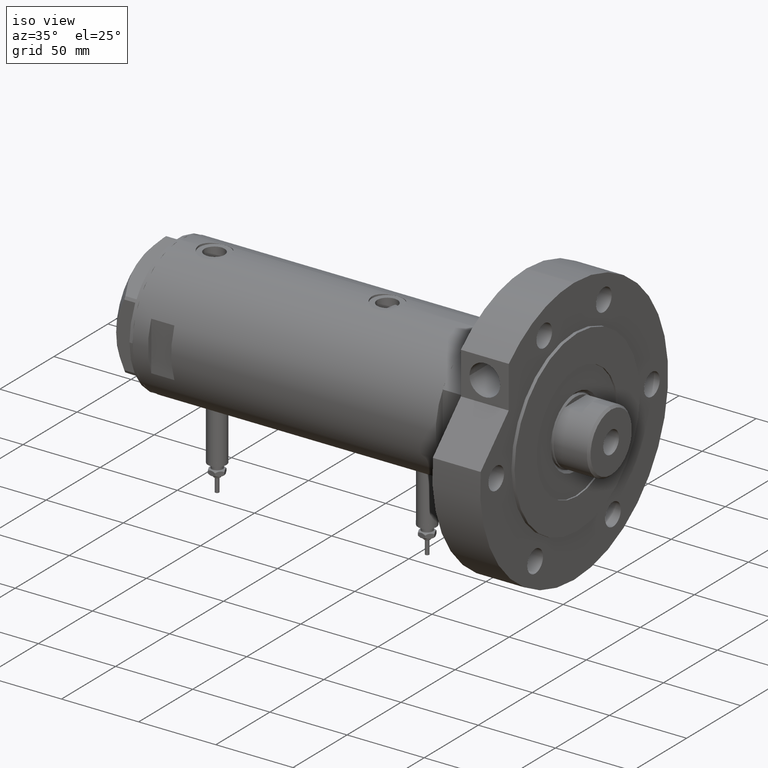
[diagram: clean part render]
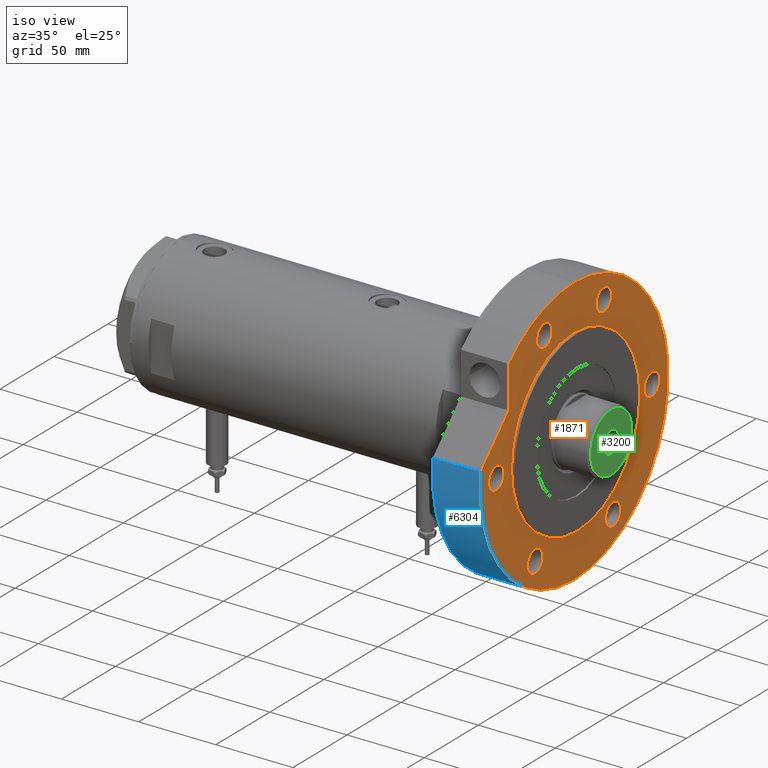
[diagram: same view with three faces highlighted in distinct colors, each labeled with its STEP entity id]
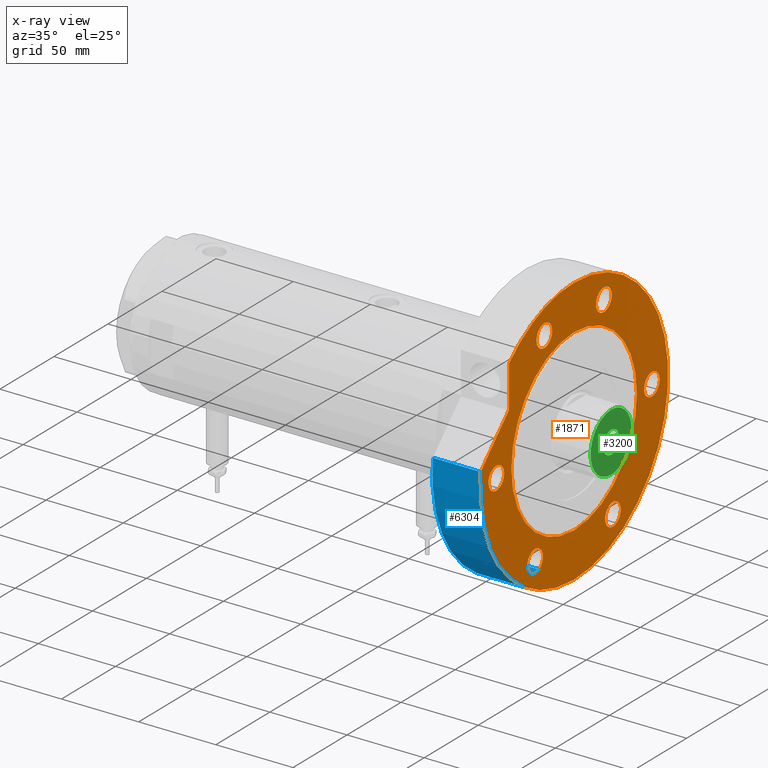
[diagram: x-ray of the same camera — body ghosted, the three highlighted faces saturated]
A machine part, iso view with three faces highlighted in distinct colors.
The next image is the same camera in x-ray (body ghosted, the three faces saturated) — at least one of them is partly hidden behind the body in this view.
Their STEP definitions:

[orange] entity #1871 — the highlighted planar face has unit normal (1, 0, -0).
#67 = LINE ( 'NONE', #7471, #4127 ) ;
#146 = CARTESIAN_POINT ( 'NONE',  ( -69.60382907247965534, 35.99999999999985079, 31.00000000000000000 ) ) ;
#243 = ORIENTED_EDGE ( 'NONE', *, *, #3673, .F. ) ;
#316 = EDGE_CURVE ( 'NONE', #851, #1540, #3559, .T. ) ;
#382 = CARTESIAN_POINT ( 'NONE',  ( -62.35382907247942086, -36.00000000000027711, 31.00000000000000000 ) ) ;
#425 = VECTOR ( 'NONE', #7259, 999.9999999999998863 ) ;
#455 = CARTESIAN_POINT ( 'NONE',  ( 66.51932634081252615, -27.55320713028675073, 31.00000000000000000 ) ) ;
#494 = EDGE_LOOP ( 'NONE', ( #6306, #4031 ) ) ;
#496 = DIRECTION ( 'NONE',  ( 1.000000000000000000, 0.000000000000000000, 0.000000000000000000 ) ) ;
#534 = ORIENTED_EDGE ( 'NONE', *, *, #6924, .F. ) ;
#685 = DIRECTION ( 'NONE',  ( 1.000000000000000000, 0.000000000000000000, 0.000000000000000000 ) ) ;
#725 = CIRCLE ( 'NONE', #1084, 7.249999999999992895 ) ;
#804 = LINE ( 'NONE', #3126, #425 ) ;
#821 = CIRCLE ( 'NONE', #5084, 7.250000000000006217 ) ;
#840 = FACE_OUTER_BOUND ( 'NONE', #4841, .T. ) ;
#851 = VERTEX_POINT ( 'NONE', #6218 ) ;
#910 = DIRECTION ( 'NONE',  ( 0.000000000000000000, 0.000000000000000000, 1.000000000000000000 ) ) ;
#959 = DIRECTION ( 'NONE',  ( 0.000000000000000000, 0.000000000000000000, 1.000000000000000000 ) ) ;
#1022 = CIRCLE ( 'NONE', #2113, 87.00000000000000000 ) ;
#1036 = CARTESIAN_POINT ( 'NONE',  ( -62.35382907247965534, 35.99999999999985079, 31.00000000000000000 ) ) ;
#1054 = ORIENTED_EDGE ( 'NONE', *, *, #3534, .F. ) ;
#1084 = AXIS2_PLACEMENT_3D ( 'NONE', #455, #5644, #3264 ) ;
#1090 = EDGE_LOOP ( 'NONE', ( #3675, #1284 ) ) ;
#1143 = DIRECTION ( 'NONE',  ( 0.000000000000000000, 0.000000000000000000, 1.000000000000000000 ) ) ;
#1155 = CARTESIAN_POINT ( 'NONE',  ( 87.00000000000000000, 1.065442715258197209E-14, 31.00000000000000000 ) ) ;
#1176 = ORIENTED_EDGE ( 'NONE', *, *, #4539, .F. ) ;
#1208 = ORIENTED_EDGE ( 'NONE', *, *, #3738, .T. ) ;
#1229 = FACE_BOUND ( 'NONE', #6736, .T. ) ;
#1284 = ORIENTED_EDGE ( 'NONE', *, *, #4460, .F. ) ;
#1299 = DIRECTION ( 'NONE',  ( 1.000000000000000000, 0.000000000000000000, 0.000000000000000000 ) ) ;
#1330 = AXIS2_PLACEMENT_3D ( 'NONE', #3307, #5107, #2162 ) ;
#1344 = VERTEX_POINT ( 'NONE', #146 ) ;
#1353 = EDGE_CURVE ( 'NONE', #4738, #4900, #1597, .T. ) ;
#1360 = CARTESIAN_POINT ( 'NONE',  ( -7.250000000000001776, -72.00000000000000000, 31.00000000000000000 ) ) ;
#1362 = CARTESIAN_POINT ( 'NONE',  ( 58.00000000000000000, 7.102951435054648059E-15, 31.00000000000000000 ) ) ;
#1398 = ORIENTED_EDGE ( 'NONE', *, *, #2879, .F. ) ;
#1422 = EDGE_LOOP ( 'NONE', ( #3239, #1398 ) ) ;
#1456 = DIRECTION ( 'NONE',  ( 1.000000000000000000, 0.000000000000000000, 0.000000000000000000 ) ) ;
#1526 = DIRECTION ( 'NONE',  ( 0.000000000000000000, 0.000000000000000000, 1.000000000000000000 ) ) ;
#1540 = VERTEX_POINT ( 'NONE', #1362 ) ;
#1597 = CIRCLE ( 'NONE', #2579, 7.250000000000001776 ) ;
#1609 = DIRECTION ( 'NONE',  ( 0.000000000000000000, 0.000000000000000000, 1.000000000000000000 ) ) ;
#1654 = VERTEX_POINT ( 'NONE', #5700 ) ;
#1681 = VERTEX_POINT ( 'NONE', #1155 ) ;
#1716 = AXIS2_PLACEMENT_3D ( 'NONE', #6696, #959, #1456 ) ;
#1767 = VERTEX_POINT ( 'NONE', #6049 ) ;
#1871 = ADVANCED_FACE ( 'NONE', ( #6459, #2523, #1229, #3847, #4931, #4317, #840, #3162 ), #1985, .T. ) ;
#1985 = PLANE ( 'NONE',  #6985 ) ;
#2011 = VERTEX_POINT ( 'NONE', #4622 ) ;
#2089 = DIRECTION ( 'NONE',  ( 1.000000000000000000, 0.000000000000000000, 0.000000000000000000 ) ) ;
#2113 = AXIS2_PLACEMENT_3D ( 'NONE', #7366, #4459, #6296 ) ;
#2162 = DIRECTION ( 'NONE',  ( 1.000000000000000000, 0.000000000000000000, 0.000000000000000000 ) ) ;
#2201 = EDGE_LOOP ( 'NONE', ( #5680, #1054 ) ) ;
#2249 = CIRCLE ( 'NONE', #4203, 7.250000000000001776 ) ;
#2284 = CARTESIAN_POINT ( 'NONE',  ( 0.000000000000000000, 0.000000000000000000, 31.00000000000000000 ) ) ;
#2304 = CIRCLE ( 'NONE', #1716, 7.249999999999992895 ) ;
#2314 = AXIS2_PLACEMENT_3D ( 'NONE', #6864, #5016, #5631 ) ;
#2436 = CIRCLE ( 'NONE', #2314, 7.249999999999992895 ) ;
#2437 = CARTESIAN_POINT ( 'NONE',  ( 0.000000000000000000, 72.00000000000000000, 31.00000000000000000 ) ) ;
#2439 = CARTESIAN_POINT ( 'NONE',  ( 62.54236590573034249, 60.47687547247904405, 31.00000000000000000 ) ) ;
#2456 = ORIENTED_EDGE ( 'NONE', *, *, #4049, .F. ) ;
#2523 = FACE_BOUND ( 'NONE', #3690, .T. ) ;
#2545 = DIRECTION ( 'NONE',  ( 1.000000000000000000, 0.000000000000000000, 0.000000000000000000 ) ) ;
#2579 = AXIS2_PLACEMENT_3D ( 'NONE', #5874, #5303, #5912 ) ;
#2699 = DIRECTION ( 'NONE',  ( 0.000000000000000000, 0.000000000000000000, 1.000000000000000000 ) ) ;
#2718 = ORIENTED_EDGE ( 'NONE', *, *, #4706, .T. ) ;
#2732 = AXIS2_PLACEMENT_3D ( 'NONE', #6608, #7252, #2545 ) ;
#2754 = DIRECTION ( 'NONE',  ( 1.000000000000000000, 0.000000000000000000, 0.000000000000000000 ) ) ;
#2879 = EDGE_CURVE ( 'NONE', #1540, #851, #3810, .T. ) ;
#2956 = VERTEX_POINT ( 'NONE', #2985 ) ;
#2981 = AXIS2_PLACEMENT_3D ( 'NONE', #6099, #6746, #4453 ) ;
#2985 = CARTESIAN_POINT ( 'NONE',  ( 59.26932634081251905, 27.55320713028675073, 31.00000000000000000 ) ) ;
#3126 = CARTESIAN_POINT ( 'NONE',  ( 47.85462068910451450, 47.85462068910500477, 31.00000000000000000 ) ) ;
#3162 = FACE_BOUND ( 'NONE', #1422, .T. ) ;
#3239 = ORIENTED_EDGE ( 'NONE', *, *, #316, .F. ) ;
#3264 = DIRECTION ( 'NONE',  ( 1.000000000000000000, 0.000000000000000000, 0.000000000000000000 ) ) ;
#3297 = CARTESIAN_POINT ( 'NONE',  ( 59.26932634081251905, -27.55320713028675073, 31.00000000000000000 ) ) ;
#3307 = CARTESIAN_POINT ( 'NONE',  ( 66.51932634081252615, 27.55320713028675073, 31.00000000000000000 ) ) ;
#3309 = AXIS2_PLACEMENT_3D ( 'NONE', #5617, #7342, #6729 ) ;
#3337 = AXIS2_PLACEMENT_3D ( 'NONE', #2284, #1143, #3464 ) ;
#3464 = DIRECTION ( 'NONE',  ( 1.000000000000000000, 0.000000000000000000, 0.000000000000000000 ) ) ;
#3534 = EDGE_CURVE ( 'NONE', #4900, #4738, #7009, .T. ) ;
#3559 = CIRCLE ( 'NONE', #3309, 58.00000000000000000 ) ;
#3603 = CARTESIAN_POINT ( 'NONE',  ( 73.76932634081251194, -27.55320713028675073, 31.00000000000000000 ) ) ;
#3673 = EDGE_CURVE ( 'NONE', #2011, #6093, #4437, .T. ) ;
#3675 = ORIENTED_EDGE ( 'NONE', *, *, #5407, .F. ) ;
#3690 = EDGE_LOOP ( 'NONE', ( #5491, #1176 ) ) ;
#3703 = AXIS2_PLACEMENT_3D ( 'NONE', #382, #910, #7257 ) ;
#3710 = CIRCLE ( 'NONE', #3337, 87.00000000000000000 ) ;
#3731 = CARTESIAN_POINT ( 'NONE',  ( 0.000000000000000000, -72.00000000000000000, 31.00000000000000000 ) ) ;
#3738 = EDGE_CURVE ( 'NONE', #4010, #1681, #1022, .T. ) ;
#3810 = CIRCLE ( 'NONE', #5646, 58.00000000000000000 ) ;
#3847 = FACE_BOUND ( 'NONE', #1090, .T. ) ;
#3852 = DIRECTION ( 'NONE',  ( 1.000000000000000000, 0.000000000000000000, 0.000000000000000000 ) ) ;
#3904 = CARTESIAN_POINT ( 'NONE',  ( -55.10382907247942796, -36.00000000000027711, 31.00000000000000000 ) ) ;
#3941 = VERTEX_POINT ( 'NONE', #2439 ) ;
#4010 = VERTEX_POINT ( 'NONE', #6382 ) ;
#4031 = ORIENTED_EDGE ( 'NONE', *, *, #5829, .F. ) ;
#4049 = EDGE_CURVE ( 'NONE', #1654, #4688, #804, .T. ) ;
#4069 = AXIS2_PLACEMENT_3D ( 'NONE', #2437, #7151, #1299 ) ;
#4079 = CARTESIAN_POINT ( 'NONE',  ( -62.35382907247965534, 35.99999999999985079, 31.00000000000000000 ) ) ;
#4127 = VECTOR ( 'NONE', #6976, 1000.000000000000000 ) ;
#4203 = AXIS2_PLACEMENT_3D ( 'NONE', #3731, #4231, #685 ) ;
#4216 = AXIS2_PLACEMENT_3D ( 'NONE', #5689, #2699, #2089 ) ;
#4231 = DIRECTION ( 'NONE',  ( 0.000000000000000000, 0.000000000000000000, 1.000000000000000000 ) ) ;
#4298 = CARTESIAN_POINT ( 'NONE',  ( 7.250000000000001776, 72.00000000000000000, 31.00000000000000000 ) ) ;
#4317 = FACE_BOUND ( 'NONE', #494, .T. ) ;
#4371 = EDGE_CURVE ( 'NONE', #1344, #4493, #6040, .T. ) ;
#4379 = VERTEX_POINT ( 'NONE', #6916 ) ;
#4382 = EDGE_CURVE ( 'NONE', #1681, #3941, #3710, .T. ) ;
#4437 = CIRCLE ( 'NONE', #3703, 7.249999999999992895 ) ;
#4453 = DIRECTION ( 'NONE',  ( 1.000000000000000000, 0.000000000000000000, 0.000000000000000000 ) ) ;
#4459 = DIRECTION ( 'NONE',  ( 0.000000000000000000, 0.000000000000000000, 1.000000000000000000 ) ) ;
#4460 = EDGE_CURVE ( 'NONE', #1767, #4905, #2249, .T. ) ;
#4464 = CARTESIAN_POINT ( 'NONE',  ( 0.000000000000000000, 0.000000000000000000, 31.00000000000000000 ) ) ;
#4493 = VERTEX_POINT ( 'NONE', #6530 ) ;
#4539 = EDGE_CURVE ( 'NONE', #4379, #2956, #6651, .T. ) ;
#4622 = CARTESIAN_POINT ( 'NONE',  ( -69.60382907247941375, -36.00000000000027711, 31.00000000000000000 ) ) ;
#4625 = CIRCLE ( 'NONE', #1330, 7.249999999999992895 ) ;
#4657 = DIRECTION ( 'NONE',  ( 0.000000000000000000, 0.000000000000000000, 1.000000000000000000 ) ) ;
#4688 = VERTEX_POINT ( 'NONE', #6870 ) ;
#4690 = ORIENTED_EDGE ( 'NONE', *, *, #4382, .T. ) ;
#4706 = EDGE_CURVE ( 'NONE', #1654, #4010, #5056, .T. ) ;
#4738 = VERTEX_POINT ( 'NONE', #5221 ) ;
#4841 = EDGE_LOOP ( 'NONE', ( #7523, #2456, #2718, #1208, #4690 ) ) ;
#4900 = VERTEX_POINT ( 'NONE', #4298 ) ;
#4905 = VERTEX_POINT ( 'NONE', #1360 ) ;
#4931 = FACE_BOUND ( 'NONE', #5082, .T. ) ;
#5016 = DIRECTION ( 'NONE',  ( 0.000000000000000000, 0.000000000000000000, 1.000000000000000000 ) ) ;
#5056 = CIRCLE ( 'NONE', #2981, 87.00000000000000000 ) ;
#5082 = EDGE_LOOP ( 'NONE', ( #243, #6002 ) ) ;
#5084 = AXIS2_PLACEMENT_3D ( 'NONE', #1036, #1526, #3852 ) ;
#5107 = DIRECTION ( 'NONE',  ( 0.000000000000000000, 0.000000000000000000, 1.000000000000000000 ) ) ;
#5221 = CARTESIAN_POINT ( 'NONE',  ( -7.250000000000001776, 72.00000000000000000, 31.00000000000000000 ) ) ;
#5303 = DIRECTION ( 'NONE',  ( 0.000000000000000000, 0.000000000000000000, 1.000000000000000000 ) ) ;
#5407 = EDGE_CURVE ( 'NONE', #4905, #1767, #7027, .T. ) ;
#5491 = ORIENTED_EDGE ( 'NONE', *, *, #6900, .F. ) ;
#5574 = DIRECTION ( 'NONE',  ( 0.000000000000000000, 0.000000000000000000, 1.000000000000000000 ) ) ;
#5584 = CARTESIAN_POINT ( 'NONE',  ( 0.000000000000000000, 0.000000000000000000, 31.00000000000000000 ) ) ;
#5617 = CARTESIAN_POINT ( 'NONE',  ( 0.000000000000000000, 0.000000000000000000, 31.00000000000000000 ) ) ;
#5631 = DIRECTION ( 'NONE',  ( 1.000000000000000000, 0.000000000000000000, 0.000000000000000000 ) ) ;
#5644 = DIRECTION ( 'NONE',  ( 0.000000000000000000, 0.000000000000000000, 1.000000000000000000 ) ) ;
#5646 = AXIS2_PLACEMENT_3D ( 'NONE', #5584, #1609, #2754 ) ;
#5680 = ORIENTED_EDGE ( 'NONE', *, *, #1353, .F. ) ;
#5689 = CARTESIAN_POINT ( 'NONE',  ( 0.000000000000000000, -72.00000000000000000, 31.00000000000000000 ) ) ;
#5700 = CARTESIAN_POINT ( 'NONE',  ( 9.196694222441541555, 86.51254715576759224, 31.00000000000000000 ) ) ;
#5829 = EDGE_CURVE ( 'NONE', #4493, #1344, #821, .T. ) ;
#5874 = CARTESIAN_POINT ( 'NONE',  ( 0.000000000000000000, 72.00000000000000000, 31.00000000000000000 ) ) ;
#5912 = DIRECTION ( 'NONE',  ( 1.000000000000000000, 0.000000000000000000, 0.000000000000000000 ) ) ;
#6002 = ORIENTED_EDGE ( 'NONE', *, *, #7413, .F. ) ;
#6040 = CIRCLE ( 'NONE', #7014, 7.250000000000006217 ) ;
#6049 = CARTESIAN_POINT ( 'NONE',  ( 7.250000000000001776, -72.00000000000000000, 31.00000000000000000 ) ) ;
#6093 = VERTEX_POINT ( 'NONE', #3904 ) ;
#6099 = CARTESIAN_POINT ( 'NONE',  ( 0.000000000000000000, 0.000000000000000000, 31.00000000000000000 ) ) ;
#6190 = EDGE_CURVE ( 'NONE', #4688, #3941, #67, .T. ) ;
#6218 = CARTESIAN_POINT ( 'NONE',  ( -58.00000000000000000, 0.000000000000000000, 31.00000000000000000 ) ) ;
#6296 = DIRECTION ( 'NONE',  ( 1.000000000000000000, 0.000000000000000000, 0.000000000000000000 ) ) ;
#6306 = ORIENTED_EDGE ( 'NONE', *, *, #4371, .F. ) ;
#6341 = VERTEX_POINT ( 'NONE', #3603 ) ;
#6382 = CARTESIAN_POINT ( 'NONE',  ( -87.00000000000000000, 0.000000000000000000, 31.00000000000000000 ) ) ;
#6459 = FACE_BOUND ( 'NONE', #2201, .T. ) ;
#6530 = CARTESIAN_POINT ( 'NONE',  ( -55.10382907247964823, 35.99999999999985079, 31.00000000000000000 ) ) ;
#6580 = EDGE_CURVE ( 'NONE', #7363, #6341, #2304, .T. ) ;
#6608 = CARTESIAN_POINT ( 'NONE',  ( 66.51932634081252615, 27.55320713028675073, 31.00000000000000000 ) ) ;
#6630 = ORIENTED_EDGE ( 'NONE', *, *, #6580, .F. ) ;
#6651 = CIRCLE ( 'NONE', #2732, 7.249999999999992895 ) ;
#6696 = CARTESIAN_POINT ( 'NONE',  ( 66.51932634081252615, -27.55320713028675073, 31.00000000000000000 ) ) ;
#6729 = DIRECTION ( 'NONE',  ( 1.000000000000000000, 0.000000000000000000, 0.000000000000000000 ) ) ;
#6736 = EDGE_LOOP ( 'NONE', ( #6630, #534 ) ) ;
#6746 = DIRECTION ( 'NONE',  ( 0.000000000000000000, 0.000000000000000000, 1.000000000000000000 ) ) ;
#6864 = CARTESIAN_POINT ( 'NONE',  ( -62.35382907247942086, -36.00000000000027711, 31.00000000000000000 ) ) ;
#6870 = CARTESIAN_POINT ( 'NONE',  ( 35.23236590573035443, 60.47687547247904405, 31.00000000000000000 ) ) ;
#6900 = EDGE_CURVE ( 'NONE', #2956, #4379, #4625, .T. ) ;
#6916 = CARTESIAN_POINT ( 'NONE',  ( 73.76932634081251194, 27.55320713028675073, 31.00000000000000000 ) ) ;
#6924 = EDGE_CURVE ( 'NONE', #6341, #7363, #725, .T. ) ;
#6976 = DIRECTION ( 'NONE',  ( 1.000000000000000000, 0.000000000000000000, -0.000000000000000000 ) ) ;
#6985 = AXIS2_PLACEMENT_3D ( 'NONE', #4464, #5574, #7262 ) ;
#7009 = CIRCLE ( 'NONE', #4069, 7.250000000000001776 ) ;
#7014 = AXIS2_PLACEMENT_3D ( 'NONE', #4079, #4657, #496 ) ;
#7027 = CIRCLE ( 'NONE', #4216, 7.250000000000001776 ) ;
#7151 = DIRECTION ( 'NONE',  ( 0.000000000000000000, 0.000000000000000000, 1.000000000000000000 ) ) ;
#7252 = DIRECTION ( 'NONE',  ( 0.000000000000000000, 0.000000000000000000, 1.000000000000000000 ) ) ;
#7257 = DIRECTION ( 'NONE',  ( 1.000000000000000000, 0.000000000000000000, 0.000000000000000000 ) ) ;
#7259 = DIRECTION ( 'NONE',  ( 0.7071067811865511255, -0.7071067811865440200, 0.000000000000000000 ) ) ;
#7262 = DIRECTION ( 'NONE',  ( 1.000000000000000000, 0.000000000000000000, -0.000000000000000000 ) ) ;
#7342 = DIRECTION ( 'NONE',  ( 0.000000000000000000, 0.000000000000000000, 1.000000000000000000 ) ) ;
#7363 = VERTEX_POINT ( 'NONE', #3297 ) ;
#7366 = CARTESIAN_POINT ( 'NONE',  ( 0.000000000000000000, 0.000000000000000000, 31.00000000000000000 ) ) ;
#7413 = EDGE_CURVE ( 'NONE', #6093, #2011, #2436, .T. ) ;
#7471 = CARTESIAN_POINT ( 'NONE',  ( 0.000000000000000000, 60.47687547247904405, 31.00000000000000000 ) ) ;
#7523 = ORIENTED_EDGE ( 'NONE', *, *, #6190, .F. ) ;

[blue] entity #6304 — the highlighted cylindrical surface (partial cylindrical patch) has radius 87 mm, axis along (-1, -0, 0).
#412 = ORIENTED_EDGE ( 'NONE', *, *, #6951, .F. ) ;
#855 = CARTESIAN_POINT ( 'NONE',  ( 9.196694222441541555, 86.51254715576759224, 0.000000000000000000 ) ) ;
#877 = CARTESIAN_POINT ( 'NONE',  ( 0.000000000000000000, 0.000000000000000000, 0.000000000000000000 ) ) ;
#997 = AXIS2_PLACEMENT_3D ( 'NONE', #877, #2558, #6654 ) ;
#1077 = AXIS2_PLACEMENT_3D ( 'NONE', #6020, #5905, #3140 ) ;
#1241 = FACE_OUTER_BOUND ( 'NONE', #3322, .T. ) ;
#1654 = VERTEX_POINT ( 'NONE', #5700 ) ;
#1903 = EDGE_CURVE ( 'NONE', #2808, #2157, #2218, .T. ) ;
#2157 = VERTEX_POINT ( 'NONE', #6840 ) ;
#2202 = DIRECTION ( 'NONE',  ( -0.000000000000000000, -0.000000000000000000, -1.000000000000000000 ) ) ;
#2218 = CIRCLE ( 'NONE', #997, 87.00000000000000000 ) ;
#2558 = DIRECTION ( 'NONE',  ( 0.000000000000000000, 0.000000000000000000, 1.000000000000000000 ) ) ;
#2765 = ORIENTED_EDGE ( 'NONE', *, *, #4706, .F. ) ;
#2808 = VERTEX_POINT ( 'NONE', #3861 ) ;
#2981 = AXIS2_PLACEMENT_3D ( 'NONE', #6099, #6746, #4453 ) ;
#3140 = DIRECTION ( 'NONE',  ( -1.000000000000000000, 0.000000000000000000, 0.000000000000000000 ) ) ;
#3322 = EDGE_LOOP ( 'NONE', ( #412, #2765, #4325, #3908 ) ) ;
#3830 = VECTOR ( 'NONE', #6669, 1000.000000000000000 ) ;
#3861 = CARTESIAN_POINT ( 'NONE',  ( 9.196694222441541555, 86.51254715576759224, 0.000000000000000000 ) ) ;
#3908 = ORIENTED_EDGE ( 'NONE', *, *, #1903, .T. ) ;
#4010 = VERTEX_POINT ( 'NONE', #6382 ) ;
#4325 = ORIENTED_EDGE ( 'NONE', *, *, #4974, .F. ) ;
#4365 = LINE ( 'NONE', #855, #3830 ) ;
#4453 = DIRECTION ( 'NONE',  ( 1.000000000000000000, 0.000000000000000000, 0.000000000000000000 ) ) ;
#4706 = EDGE_CURVE ( 'NONE', #1654, #4010, #5056, .T. ) ;
#4901 = LINE ( 'NONE', #7365, #6584 ) ;
#4974 = EDGE_CURVE ( 'NONE', #2808, #1654, #4365, .T. ) ;
#5056 = CIRCLE ( 'NONE', #2981, 87.00000000000000000 ) ;
#5700 = CARTESIAN_POINT ( 'NONE',  ( 9.196694222441541555, 86.51254715576759224, 31.00000000000000000 ) ) ;
#5905 = DIRECTION ( 'NONE',  ( -0.000000000000000000, -0.000000000000000000, -1.000000000000000000 ) ) ;
#6020 = CARTESIAN_POINT ( 'NONE',  ( 0.000000000000000000, 0.000000000000000000, 31.00000000000000000 ) ) ;
#6099 = CARTESIAN_POINT ( 'NONE',  ( 0.000000000000000000, 0.000000000000000000, 31.00000000000000000 ) ) ;
#6304 = ADVANCED_FACE ( 'NONE', ( #1241 ), #7201, .T. ) ;
#6382 = CARTESIAN_POINT ( 'NONE',  ( -87.00000000000000000, 0.000000000000000000, 31.00000000000000000 ) ) ;
#6584 = VECTOR ( 'NONE', #2202, 1000.000000000000000 ) ;
#6654 = DIRECTION ( 'NONE',  ( 1.000000000000000000, 0.000000000000000000, 0.000000000000000000 ) ) ;
#6669 = DIRECTION ( 'NONE',  ( -0.000000000000000000, -0.000000000000000000, 1.000000000000000000 ) ) ;
#6746 = DIRECTION ( 'NONE',  ( 0.000000000000000000, 0.000000000000000000, 1.000000000000000000 ) ) ;
#6840 = CARTESIAN_POINT ( 'NONE',  ( -87.00000000000000000, 0.000000000000000000, 0.000000000000000000 ) ) ;
#6951 = EDGE_CURVE ( 'NONE', #4010, #2157, #4901, .T. ) ;
#7201 = CYLINDRICAL_SURFACE ( 'NONE', #1077, 87.00000000000000000 ) ;
#7365 = CARTESIAN_POINT ( 'NONE',  ( -87.00000000000000000, 0.000000000000000000, 31.00000000000000000 ) ) ;

[green] entity #3200 — the highlighted planar face has unit normal (1, 0, -0).
#192 = CARTESIAN_POINT ( 'NONE',  ( 19.10000000000006182, 2.424800662311762954E-15, 253.3000000000000114 ) ) ;
#246 = FACE_BOUND ( 'NONE', #6272, .T. ) ;
#281 = AXIS2_PLACEMENT_3D ( 'NONE', #2776, #5113, #6375 ) ;
#366 = CARTESIAN_POINT ( 'NONE',  ( -7.249999999999999112, 8.878689293818310074E-16, 253.3000000000000114 ) ) ;
#753 = AXIS2_PLACEMENT_3D ( 'NONE', #5649, #6955, #6335 ) ;
#776 = DIRECTION ( 'NONE',  ( 0.000000000000000000, 0.000000000000000000, 1.000000000000000000 ) ) ;
#865 = EDGE_CURVE ( 'NONE', #2310, #2353, #1109, .T. ) ;
#931 = ORIENTED_EDGE ( 'NONE', *, *, #865, .T. ) ;
#1109 = CIRCLE ( 'NONE', #753, 19.10000000000006182 ) ;
#1310 = PLANE ( 'NONE',  #2714 ) ;
#1549 = DIRECTION ( 'NONE',  ( 1.000000000000000000, 0.000000000000000000, 0.000000000000000000 ) ) ;
#1635 = CARTESIAN_POINT ( 'NONE',  ( 0.000000000000000000, 0.000000000000000000, 253.3000000000000114 ) ) ;
#1885 = DIRECTION ( 'NONE',  ( 0.000000000000000000, 0.000000000000000000, 1.000000000000000000 ) ) ;
#1998 = CARTESIAN_POINT ( 'NONE',  ( 0.000000000000000000, 0.000000000000000000, 253.3000000000000114 ) ) ;
#2010 = EDGE_CURVE ( 'NONE', #6028, #2602, #3188, .T. ) ;
#2074 = CARTESIAN_POINT ( 'NONE',  ( -19.10000000000006182, 0.000000000000000000, 253.3000000000000114 ) ) ;
#2298 = AXIS2_PLACEMENT_3D ( 'NONE', #1998, #1885, #4220 ) ;
#2310 = VERTEX_POINT ( 'NONE', #2074 ) ;
#2353 = VERTEX_POINT ( 'NONE', #192 ) ;
#2481 = ORIENTED_EDGE ( 'NONE', *, *, #6440, .T. ) ;
#2544 = ORIENTED_EDGE ( 'NONE', *, *, #2010, .F. ) ;
#2563 = DIRECTION ( 'NONE',  ( 1.000000000000000000, 0.000000000000000000, -0.000000000000000000 ) ) ;
#2602 = VERTEX_POINT ( 'NONE', #5217 ) ;
#2714 = AXIS2_PLACEMENT_3D ( 'NONE', #4936, #776, #2563 ) ;
#2761 = AXIS2_PLACEMENT_3D ( 'NONE', #1635, #3964, #1549 ) ;
#2776 = CARTESIAN_POINT ( 'NONE',  ( 0.000000000000000000, 0.000000000000000000, 253.3000000000000114 ) ) ;
#2805 = EDGE_LOOP ( 'NONE', ( #931, #2481 ) ) ;
#3188 = CIRCLE ( 'NONE', #281, 7.249999999999999112 ) ;
#3200 = ADVANCED_FACE ( 'NONE', ( #4355, #246 ), #1310, .T. ) ;
#3964 = DIRECTION ( 'NONE',  ( -0.000000000000000000, -0.000000000000000000, 1.000000000000000000 ) ) ;
#4220 = DIRECTION ( 'NONE',  ( 1.000000000000000000, 0.000000000000000000, 0.000000000000000000 ) ) ;
#4355 = FACE_OUTER_BOUND ( 'NONE', #2805, .T. ) ;
#4936 = CARTESIAN_POINT ( 'NONE',  ( 0.000000000000000000, 0.000000000000000000, 253.3000000000000114 ) ) ;
#5113 = DIRECTION ( 'NONE',  ( -0.000000000000000000, -0.000000000000000000, 1.000000000000000000 ) ) ;
#5217 = CARTESIAN_POINT ( 'NONE',  ( 7.249999999999999112, 0.000000000000000000, 253.3000000000000114 ) ) ;
#5452 = EDGE_CURVE ( 'NONE', #2602, #6028, #6793, .T. ) ;
#5591 = CIRCLE ( 'NONE', #2298, 19.10000000000006182 ) ;
#5649 = CARTESIAN_POINT ( 'NONE',  ( 0.000000000000000000, 0.000000000000000000, 253.3000000000000114 ) ) ;
#5836 = ORIENTED_EDGE ( 'NONE', *, *, #5452, .F. ) ;
#6028 = VERTEX_POINT ( 'NONE', #366 ) ;
#6272 = EDGE_LOOP ( 'NONE', ( #5836, #2544 ) ) ;
#6335 = DIRECTION ( 'NONE',  ( 1.000000000000000000, 0.000000000000000000, 0.000000000000000000 ) ) ;
#6375 = DIRECTION ( 'NONE',  ( 1.000000000000000000, 0.000000000000000000, 0.000000000000000000 ) ) ;
#6440 = EDGE_CURVE ( 'NONE', #2353, #2310, #5591, .T. ) ;
#6793 = CIRCLE ( 'NONE', #2761, 7.249999999999999112 ) ;
#6955 = DIRECTION ( 'NONE',  ( 0.000000000000000000, 0.000000000000000000, 1.000000000000000000 ) ) ;